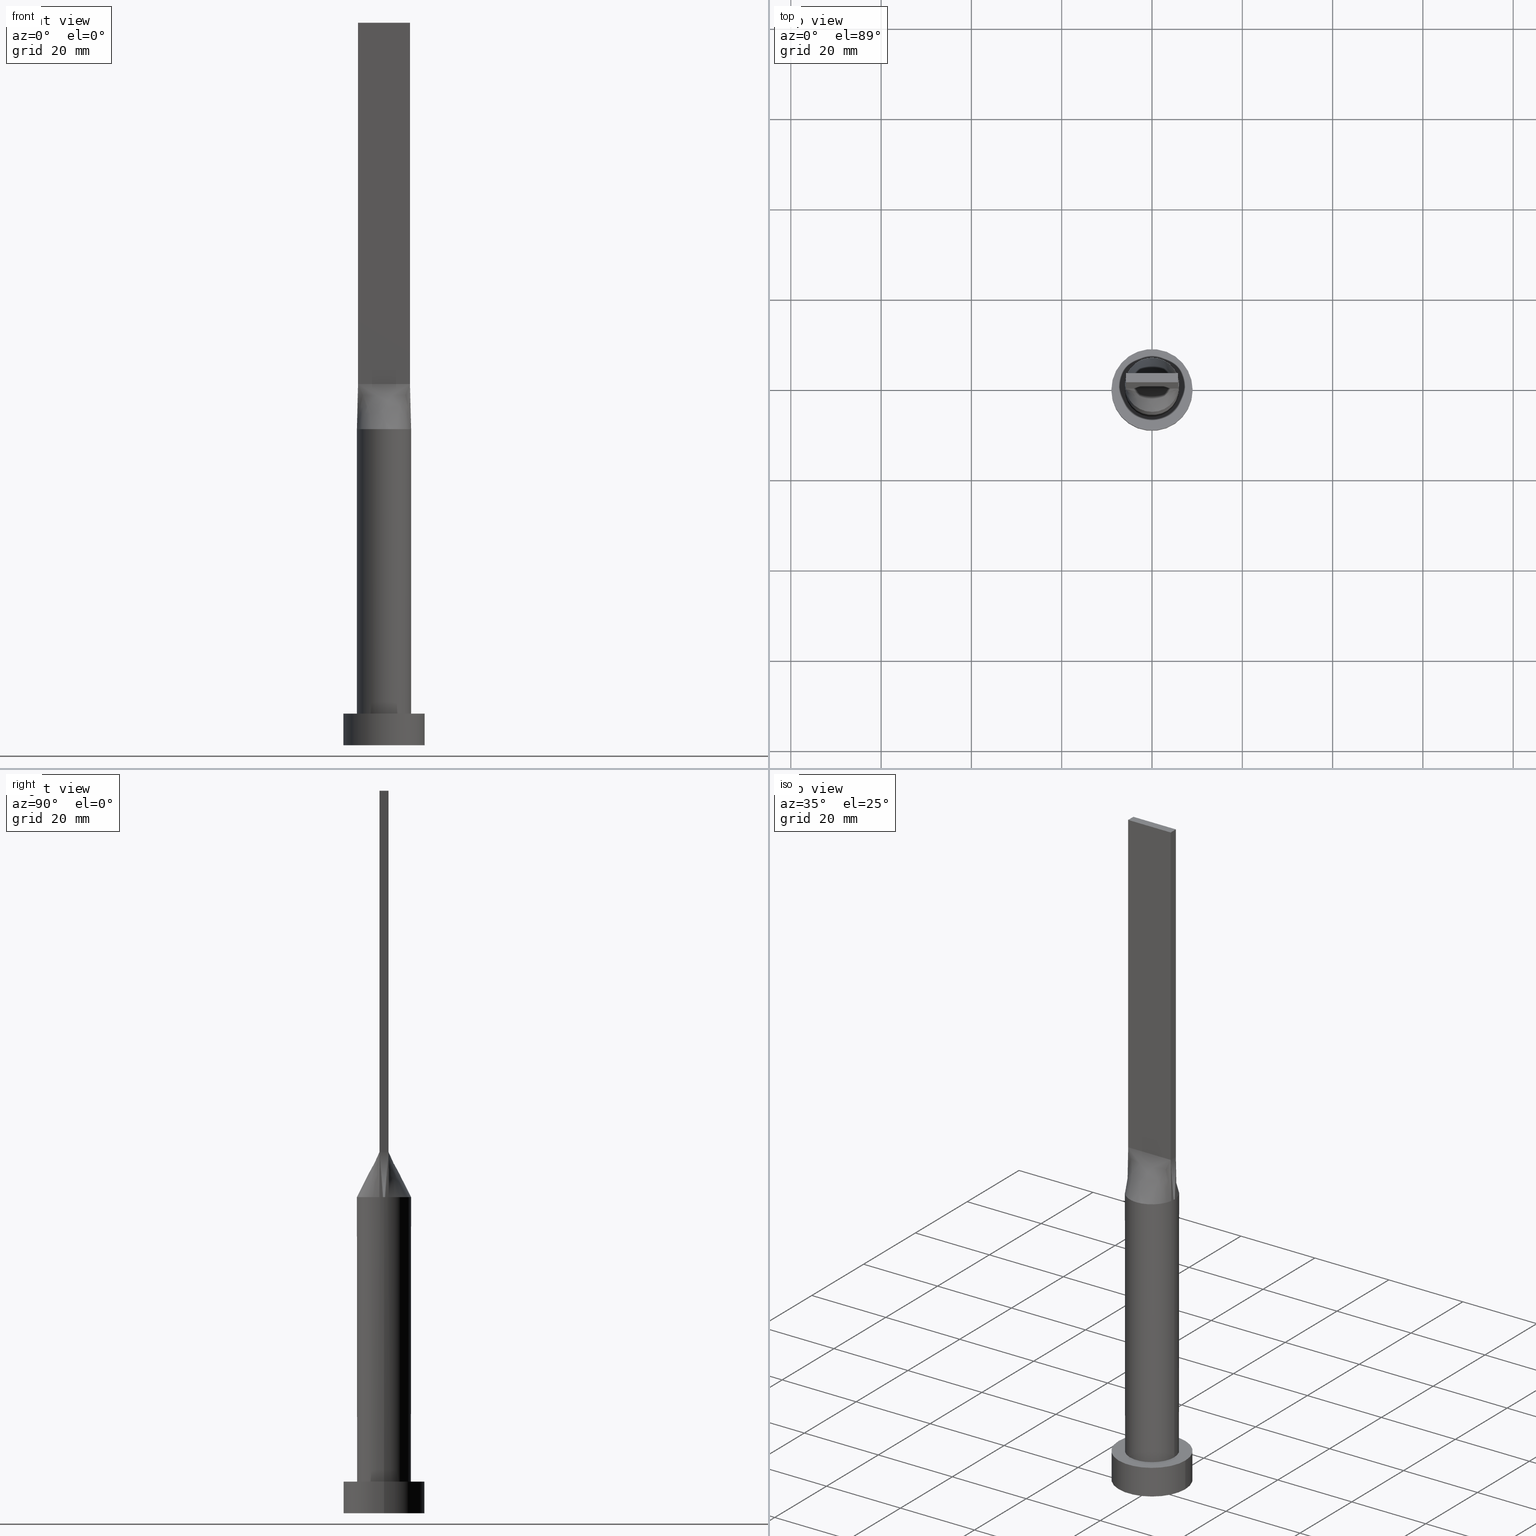
[diagram: canonical four-view strip — front | top / right | iso, engineering-drawing reading convention]
A machine part, canonical four-view strip (front | top / right | iso — engineering-drawing reading convention). The complete STEP part file that produces these views, byte-faithful:
ISO-10303-21;
HEADER;
FILE_DESCRIPTION (( 'STEP AP203' ),
    '1' );
FILE_NAME ('2aea.STEP',
    '2023-02-13T08:52:04',
    ( '' ),
    ( '' ),
    'SwSTEP 2.0',
    'SolidWorks 2019',
    '' );
FILE_SCHEMA (( 'CONFIG_CONTROL_DESIGN' ));
ENDSEC;

DATA;
#1 = CARTESIAN_POINT ( 'NONE',  ( -3.129188161608685181, 5.133661927581553819, 70.00000000000001421 ) ) ;
#2 = EDGE_CURVE ( 'NONE', #601, #67, #319, .T. ) ;
#3 = CARTESIAN_POINT ( 'NONE',  ( 4.791666666666666963, -0.9999999999999995559, 80.00000000000001421 ) ) ;
#4 = CARTESIAN_POINT ( 'NONE',  ( -5.750000000000000000, 1.000000000000000000, 80.00000000000000000 ) ) ;
#5 = CARTESIAN_POINT ( 'NONE',  ( -5.999343923413460899, -0.3452161848042010761, 70.00000000000000000 ) ) ;
#6 = COORDINATED_UNIVERSAL_TIME_OFFSET ( 1, 0, .AHEAD. ) ;
#7 = CARTESIAN_POINT ( 'NONE',  ( -5.750000000000000000, -0.9999999999999991118, 80.00000000000000000 ) ) ;
#8 = APPLICATION_PROTOCOL_DEFINITION ( 'international standard', 'config_control_design', 1994, #121 ) ;
#9 = ORIENTED_EDGE ( 'NONE', *, *, #505, .F. ) ;
#10 = PERSON ( 'NEUR�EN�', 'NEUR�EN�', 'NEUR�EN�', ('NEUR�EN�'), ('NEUR�EN�'), ('NEUR�EN�') ) ;
#11 = CALENDAR_DATE ( 2023, 13, 2 ) ;
#12 = ORIENTED_EDGE ( 'NONE', *, *, #549, .T. ) ;
#13 = AXIS2_PLACEMENT_3D ( 'NONE', #100, #343, #287 ) ;
#14 = CARTESIAN_POINT ( 'NONE',  ( 0.000000000000000000, 0.000000000000000000, 7.000000000000000000 ) ) ;
#15 = CIRCLE ( 'NONE', #161, 6.000000000000000888 ) ;
#16 = ORIENTED_EDGE ( 'NONE', *, *, #196, .T. ) ;
#17 = PLANE ( 'NONE',  #243 ) ;
#18 = APPROVAL ( #585, 'NEUR�EN�' ) ;
#19 = CARTESIAN_POINT ( 'NONE',  ( -5.750000000000000000, 1.000000000000000000, 80.00000000000000000 ) ) ;
#20 = ORIENTED_EDGE ( 'NONE', *, *, #455, .F. ) ;
#21 = CARTESIAN_POINT ( 'NONE',  ( -5.750000000000000000, 1.000000000000000000, 80.00000000000000000 ) ) ;
#22 = DIRECTION ( 'NONE',  ( 0.000000000000000000, 0.000000000000000000, 1.000000000000000000 ) ) ;
#23 = ORIENTED_EDGE ( 'NONE', *, *, #583, .F. ) ;
#24 = CARTESIAN_POINT ( 'NONE',  ( -9.000000000000000000, 0.000000000000000000, 0.000000000000000000 ) ) ;
#25 = VECTOR ( 'NONE', #178, 1000.000000000000000 ) ;
#26 = CARTESIAN_POINT ( 'NONE',  ( 5.750000000000000000, -0.9999999999999997780, 80.00000000000000000 ) ) ;
#27 = AXIS2_PLACEMENT_3D ( 'NONE', #262, #123, #449 ) ;
#28 = ORIENTED_EDGE ( 'NONE', *, *, #276, .F. ) ;
#29 = CARTESIAN_POINT ( 'NONE',  ( 5.750000000000000000, 1.000000000000000000, 80.00000000000000000 ) ) ;
#30 = FACE_OUTER_BOUND ( 'NONE', #31, .T. ) ;
#31 = EDGE_LOOP ( 'NONE', ( #299, #447, #380, #550, #171 ) ) ;
#32 = CARTESIAN_POINT ( 'NONE',  ( -5.830635264459023581, 1.014023524253742758, 75.00000000000001421 ) ) ;
#33 = CARTESIAN_POINT ( 'NONE',  ( 3.354166666666666075, -0.9999999999999993339, 80.00000000000001421 ) ) ;
#34 = ORIENTED_EDGE ( 'NONE', *, *, #505, .T. ) ;
#35 = CARTESIAN_POINT ( 'NONE',  ( -5.155904004142094266, 3.127085030567958501, 70.00000000000000000 ) ) ;
#36 = DIRECTION ( 'NONE',  ( -0.000000000000000000, -0.000000000000000000, -1.000000000000000000 ) ) ;
#37 =( GEOMETRIC_REPRESENTATION_CONTEXT ( 3 ) GLOBAL_UNCERTAINTY_ASSIGNED_CONTEXT ( ( #321 ) ) GLOBAL_UNIT_ASSIGNED_CONTEXT ( ( #155, #56, #66 ) ) REPRESENTATION_CONTEXT ( 'NONE', 'WORKASPACE' ) );
#38 = VERTEX_POINT ( 'NONE', #19 ) ;
#39 = CARTESIAN_POINT ( 'NONE',  ( 0.4205485882577719159, 6.000000000000000000, 70.00000000000000000 ) ) ;
#40 = CC_DESIGN_DATE_AND_TIME_ASSIGNMENT ( #608, #502, ( #224 ) ) ;
#41 = CARTESIAN_POINT ( 'NONE',  ( 2.635416666666665630, -0.9999999999999991118, 80.00000000000000000 ) ) ;
#42 = LINE ( 'NONE', #143, #64 ) ;
#43 = CARTESIAN_POINT ( 'NONE',  ( 1.197916666666666741, -0.9999999999999991118, 80.00000000000000000 ) ) ;
#44 = CARTESIAN_POINT ( 'NONE',  ( -2.047812955694715775, 5.654083712646525761, 70.00000000000001421 ) ) ;
#45 = CARTESIAN_POINT ( 'NONE',  ( -5.750000000000000000, -0.9999999999999988898, 160.0000000000000000 ) ) ;
#46 = EDGE_CURVE ( 'NONE', #261, #253, #15, .T. ) ;
#47 = CARTESIAN_POINT ( 'NONE',  ( 1.197916666666664076, 1.000000000000000000, 79.99999999999998579 ) ) ;
#48 = LINE ( 'NONE', #52, #281 ) ;
#49 = CARTESIAN_POINT ( 'NONE',  ( -5.270833333333333925, 1.000000000000000000, 80.00000000000000000 ) ) ;
#50 = CARTESIAN_POINT ( 'NONE',  ( -5.911270528918048051, 1.028047048507486849, 70.00000000000000000 ) ) ;
#51 = CARTESIAN_POINT ( 'NONE',  ( 3.129188161608685181, 5.133661927581551154, 69.99999999999998579 ) ) ;
#52 = CARTESIAN_POINT ( 'NONE',  ( -9.000000000000000000, 0.000000000000000000, 7.000000000000000000 ) ) ;
#53 = CARTESIAN_POINT ( 'NONE',  ( -5.750000000000000000, -0.9999999999999988898, 160.0000000000000000 ) ) ;
#54 = APPROVAL_PERSON_ORGANIZATION ( #288, #18, #341 ) ;
#55 = EDGE_CURVE ( 'NONE', #253, #261, #134, .T. ) ;
#56 =( NAMED_UNIT ( * ) PLANE_ANGLE_UNIT ( ) SI_UNIT ( $, .RADIAN. ) );
#57 = PLANE ( 'NONE',  #249 ) ;
#58 = ORIENTED_EDGE ( 'NONE', *, *, #377, .T. ) ;
#59 = CARTESIAN_POINT ( 'NONE',  ( 0.000000000000000000, 0.000000000000000000, 0.000000000000000000 ) ) ;
#60 = EDGE_CURVE ( 'NONE', #67, #507, #403, .T. ) ;
#61 = APPROVAL_DATE_TIME ( #589, #18 ) ;
#62 = EDGE_LOOP ( 'NONE', ( #411, #560 ) ) ;
#63 = DIRECTION ( 'NONE',  ( 0.000000000000000000, 0.000000000000000000, 1.000000000000000000 ) ) ;
#64 = VECTOR ( 'NONE', #429, 1000.000000000000114 ) ;
#65 = FACE_BOUND ( 'NONE', #62, .T. ) ;
#66 =( NAMED_UNIT ( * ) SI_UNIT ( $, .STERADIAN. ) SOLID_ANGLE_UNIT ( ) );
#67 = VERTEX_POINT ( 'NONE', #26 ) ;
#68 = CARTESIAN_POINT ( 'NONE',  ( 4.788055724916948641, 3.685825800347680925, 70.00000000000000000 ) ) ;
#69 = CARTESIAN_POINT ( 'NONE',  ( -5.750000000000000000, 1.000000000000000000, 160.0000000000000000 ) ) ;
#70 = VERTEX_POINT ( 'NONE', #501 ) ;
#71 = CARTESIAN_POINT ( 'NONE',  ( -5.911281259919041631, 1.028048927730119244, 70.00000000000000000 ) ) ;
#72 = ADVANCED_FACE ( 'NONE', ( #305 ), #158, .F. ) ;
#73 = CARTESIAN_POINT ( 'NONE',  ( -5.750000000000000000, -0.9999999999999988898, 160.0000000000000000 ) ) ;
#74 = VERTEX_POINT ( 'NONE', #349 ) ;
#75 = CARTESIAN_POINT ( 'NONE',  ( -5.826866859193279069, 1.513368149424918263, 70.00000000000001421 ) ) ;
#76 = CARTESIAN_POINT ( 'NONE',  ( 0.000000000000000000, 0.000000000000000000, 7.000000000000000000 ) ) ;
#77 = ORIENTED_EDGE ( 'NONE', *, *, #557, .F. ) ;
#78 = DIRECTION ( 'NONE',  ( 0.01612489271847474676, -0.002804329168430286148, 0.9998660528154422744 ) ) ;
#79 = CLOSED_SHELL ( 'NONE', ( #472, #173, #309, #150, #514, #338, #255, #147, #297, #577, #163, #72, #602, #489, #387 ) ) ;
#80 = CARTESIAN_POINT ( 'NONE',  ( 0.4791666666666670182, -0.9999999999999991118, 79.99999999999998579 ) ) ;
#81 = EDGE_LOOP ( 'NONE', ( #590, #493, #511, #28, #20 ) ) ;
#82 = CARTESIAN_POINT ( 'NONE',  ( 5.750000000000000000, -0.9999999999999997780, 160.0000000000000000 ) ) ;
#83 = CARTESIAN_POINT ( 'NONE',  ( -1.677083333333331705, -0.9999999999999991118, 79.99999999999998579 ) ) ;
#84 = VERTEX_POINT ( 'NONE', #73 ) ;
#85 = EDGE_CURVE ( 'NONE', #74, #303, #264, .T. ) ;
#86 = CARTESIAN_POINT ( 'NONE',  ( -2.047812955694715775, 5.654083712646525761, 70.00000000000001421 ) ) ;
#87 = CARTESIAN_POINT ( 'NONE',  ( -5.911270528918048051, -1.028047048507485295, 70.00000000000000000 ) ) ;
#88 = APPROVAL_PERSON_ORGANIZATION ( #149, #323, #291 ) ;
#89 = CARTESIAN_POINT ( 'NONE',  ( -4.791666666666667851, 1.000000000000000000, 80.00000000000000000 ) ) ;
#90 = CARTESIAN_POINT ( 'NONE',  ( 1.677083333333333037, -0.9999999999999991118, 80.00000000000000000 ) ) ;
#91 = CARTESIAN_POINT ( 'NONE',  ( 5.750000000000000000, 1.000000000000000000, 80.00000000000000000 ) ) ;
#92 = EDGE_CURVE ( 'NONE', #518, #38, #314, .T. ) ;
#93 = LINE ( 'NONE', #131, #193 ) ;
#94 = CARTESIAN_POINT ( 'NONE',  ( -2.635416666666670071, 1.000000000000000000, 80.00000000000001421 ) ) ;
#95 = CYLINDRICAL_SURFACE ( 'NONE', #273, 9.000000000000000000 ) ;
#96 = VECTOR ( 'NONE', #78, 1000.000000000000114 ) ;
#97 = CARTESIAN_POINT ( 'NONE',  ( 4.788055724916948641, 3.685825800347680925, 70.00000000000000000 ) ) ;
#98 = CARTESIAN_POINT ( 'NONE',  ( 0.000000000000000000, 0.000000000000000000, 70.00000000000000000 ) ) ;
#99 = CARTESIAN_POINT ( 'NONE',  ( 0.9583333333333304838, 1.000000000000000000, 79.99999999999998579 ) ) ;
#100 = CARTESIAN_POINT ( 'NONE',  ( 0.000000000000000000, 0.000000000000000000, 70.00000000000000000 ) ) ;
#101 = APPLICATION_PROTOCOL_DEFINITION ( 'international standard', 'config_control_design', 1994, #217 ) ;
#102 = VECTOR ( 'NONE', #198, 1000.000000000000000 ) ;
#103 = APPROVAL_STATUS ( 'not_yet_approved' ) ;
#104 = EDGE_CURVE ( 'NONE', #218, #594, #364, .T. ) ;
#105 = DATE_AND_TIME ( #490, #536 ) ;
#106 = ORIENTED_EDGE ( 'NONE', *, *, #394, .T. ) ;
#107 = DIRECTION ( 'NONE',  ( 0.000000000000000000, 1.000000000000000000, 0.000000000000000000 ) ) ;
#108 = DIRECTION ( 'NONE',  ( 1.000000000000000000, 0.000000000000000000, 0.000000000000000000 ) ) ;
#109 = ORIENTED_EDGE ( 'NONE', *, *, #592, .T. ) ;
#110 = MANIFOLD_SOLID_BREP ( 'P�idat vysunut�m5', #79 ) ;
#111 = CARTESIAN_POINT ( 'NONE',  ( 5.155904004142093378, 3.127085030567957169, 70.00000000000001421 ) ) ;
#112 = AXIS2_PLACEMENT_3D ( 'NONE', #481, #237, #500 ) ;
#113 = DIRECTION ( 'NONE',  ( 0.000000000000000000, 0.000000000000000000, 1.000000000000000000 ) ) ;
#114 = ORIENTED_EDGE ( 'NONE', *, *, #85, .F. ) ;
#115 = CARTESIAN_POINT ( 'NONE',  ( -1.654707822076785906, 5.782296865845955480, 70.00000000000001421 ) ) ;
#116 = DIRECTION ( 'NONE',  ( 0.000000000000000000, -1.000000000000000000, 0.000000000000000000 ) ) ;
#117 = ORIENTED_EDGE ( 'NONE', *, *, #532, .F. ) ;
#118 = DIRECTION ( 'NONE',  ( -0.000000000000000000, -0.000000000000000000, -1.000000000000000000 ) ) ;
#119 = CARTESIAN_POINT ( 'NONE',  ( -5.999671961706731338, 1.720595681592925272E-14, 70.00000000000000000 ) ) ;
#120 = ORIENTED_EDGE ( 'NONE', *, *, #128, .F. ) ;
#121 = APPLICATION_CONTEXT ( 'configuration controlled 3d designs of mechanical parts and assemblies' ) ;
#122 = CIRCLE ( 'NONE', #383, 9.000000000000000000 ) ;
#123 = DIRECTION ( 'NONE',  ( 1.000000000000000000, 0.000000000000000000, -0.000000000000000000 ) ) ;
#124 = SHAPE_DEFINITION_REPRESENTATION ( #479, #410 ) ;
#125 = ORIENTED_EDGE ( 'NONE', *, *, #55, .T. ) ;
#126 = CARTESIAN_POINT ( 'NONE',  ( 2.047812955694715331, 5.654083712646525761, 70.00000000000000000 ) ) ;
#127 = DIRECTION ( 'NONE',  ( 1.000000000000000000, 0.000000000000000000, 0.000000000000000000 ) ) ;
#128 = EDGE_CURVE ( 'NONE', #303, #74, #235, .T. ) ;
#129 = CALENDAR_DATE ( 2023, 13, 2 ) ;
#130 = ORIENTED_EDGE ( 'NONE', *, *, #2, .F. ) ;
#131 = CARTESIAN_POINT ( 'NONE',  ( 5.750000000000000000, 1.000000000000000000, 160.0000000000000000 ) ) ;
#132 = CARTESIAN_POINT ( 'NONE',  ( 5.830635264459022693, -1.014023524253744313, 75.00000000000001421 ) ) ;
#133 = CARTESIAN_POINT ( 'NONE',  ( -3.833333333333331705, -0.9999999999999991118, 79.99999999999998579 ) ) ;
#134 = CIRCLE ( 'NONE', #487, 6.000000000000000888 ) ;
#135 = CARTESIAN_POINT ( 'NONE',  ( 1.677083333333330817, 1.000000000000000000, 79.99999999999998579 ) ) ;
#136 = EDGE_CURVE ( 'NONE', #340, #491, #151, .T. ) ;
#137 = CARTESIAN_POINT ( 'NONE',  ( -6.000000000000000888, 0.000000000000000000, 7.000000000000000000 ) ) ;
#138 = CARTESIAN_POINT ( 'NONE',  ( -0.2395833333333365622, 1.000000000000000000, 79.99999999999998579 ) ) ;
#139 = CARTESIAN_POINT ( 'NONE',  ( -2.395833333333331261, -0.9999999999999991118, 79.99999999999998579 ) ) ;
#140 = CARTESIAN_POINT ( 'NONE',  ( -3.833333333333336146, 1.000000000000000000, 80.00000000000001421 ) ) ;
#141 = CARTESIAN_POINT ( 'NONE',  ( 0.000000000000000000, 0.000000000000000000, 7.000000000000000000 ) ) ;
#142 = VECTOR ( 'NONE', #382, 1000.000000000000000 ) ;
#143 = CARTESIAN_POINT ( 'NONE',  ( 5.830635264459024469, 1.014023524253741648, 75.00000000000001421 ) ) ;
#144 = B_SPLINE_SURFACE_WITH_KNOTS ( 'NONE', 3, 1, ( 
 ( #87, #526 ),
 ( #277, #328 ),
 ( #233, #431 ),
 ( #427, #133 ),
 ( #517, #184 ),
 ( #423, #221 ),
 ( #614, #139 ),
 ( #562, #179 ),
 ( #175, #83 ),
 ( #365, #374 ),
 ( #326, #462 ),
 ( #181, #524 ),
 ( #573, #607 ),
 ( #467, #612 ),
 ( #368, #80 ),
 ( #621, #566 ),
 ( #186, #43 ),
 ( #473, #90 ),
 ( #274, #231 ),
 ( #425, #575 ),
 ( #378, #41 ),
 ( #267, #33 ),
 ( #228, #371 ),
 ( #568, #3 ),
 ( #434, #334 ),
 ( #146, #301 ) ),
 .UNSPECIFIED., .F., .F., .F.,
 ( 4, 2, 2, 2, 2, 2, 2, 2, 2, 2, 2, 2, 4 ),
 ( 2, 2 ),
 ( 0.000000000000000000, 0.1250000000000001388, 0.2500000000000002776, 0.3125000000000002220, 0.3750000000000001665, 0.4375000000000001665, 0.5000000000000001110, 0.5625000000000001110, 0.6250000000000000000, 0.6875000000000000000, 0.7499999999999998890, 0.8750000000000000000, 1.000000000000000000 ),
 ( 0.000000000000000000, 1.000000000000000000 ),
 .UNSPECIFIED. ) ;
#145 = AXIS2_PLACEMENT_3D ( 'NONE', #506, #593, #395 ) ;
#146 = CARTESIAN_POINT ( 'NONE',  ( 5.911270528918047162, -1.028047048507488848, 70.00000000000000000 ) ) ;
#147 = ADVANCED_FACE ( 'NONE', ( #30 ), #523, .T. ) ;
#148 = CARTESIAN_POINT ( 'NONE',  ( 0.000000000000000000, 0.000000000000000000, 0.000000000000000000 ) ) ;
#149 = PERSON_AND_ORGANIZATION ( #10, #234 ) ;
#150 = ADVANCED_FACE ( 'NONE', ( #65, #414 ), #302, .T. ) ;
#151 = CIRCLE ( 'NONE', #313, 9.000000000000000000 ) ;
#152 = ORIENTED_EDGE ( 'NONE', *, *, #283, .T. ) ;
#153 = CARTESIAN_POINT ( 'NONE',  ( 6.000000000000000888, 7.347880794884120722E-16, 7.000000000000000000 ) ) ;
#154 = FACE_OUTER_BOUND ( 'NONE', #598, .T. ) ;
#155 =( LENGTH_UNIT ( ) NAMED_UNIT ( * ) SI_UNIT ( .MILLI., .METRE. ) );
#156 = ORIENTED_EDGE ( 'NONE', *, *, #330, .F. ) ;
#157 = CARTESIAN_POINT ( 'NONE',  ( 5.674157483178163375, 2.041064365575945061, 70.00000000000000000 ) ) ;
#158 = PLANE ( 'NONE',  #27 ) ;
#159 = ORIENTED_EDGE ( 'NONE', *, *, #616, .T. ) ;
#160 = LINE ( 'NONE', #352, #289 ) ;
#161 = AXIS2_PLACEMENT_3D ( 'NONE', #14, #22, #547 ) ;
#162 = CARTESIAN_POINT ( 'NONE',  ( 5.750000000000000000, -0.3333333333333330928, 79.99999999999998579 ) ) ;
#163 = ADVANCED_FACE ( 'NONE', ( #252 ), #400, .F. ) ;
#164 = DATE_AND_TIME ( #257, #580 ) ;
#165 = ORIENTED_EDGE ( 'NONE', *, *, #428, .T. ) ;
#166 = FACE_OUTER_BOUND ( 'NONE', #407, .T. ) ;
#167 = DIRECTION ( 'NONE',  ( 0.000000000000000000, 0.000000000000000000, 1.000000000000000000 ) ) ;
#168 = VERTEX_POINT ( 'NONE', #119 ) ;
#169 = CARTESIAN_POINT ( 'NONE',  ( 5.911281968884419591, -1.028049053400068802, 70.00000000000000000 ) ) ;
#170 = CARTESIAN_POINT ( 'NONE',  ( -5.750000000000000000, -0.9999999999999988898, 80.00000000000000000 ) ) ;
#171 = ORIENTED_EDGE ( 'NONE', *, *, #592, .F. ) ;
#172 = DIRECTION ( 'NONE',  ( 1.000000000000000000, 0.000000000000000000, -0.000000000000000000 ) ) ;
#173 = ADVANCED_FACE ( 'NONE', ( #154 ), #509, .T. ) ;
#174 = LOCAL_TIME ( 9, 52, 4.000000000000000000, #293 ) ;
#175 = CARTESIAN_POINT ( 'NONE',  ( -2.785082292717044439, -5.329682650394844678, 70.00000000000001421 ) ) ;
#176 = APPROVAL_ROLE ( '' ) ;
#177 = EDGE_LOOP ( 'NONE', ( #106, #555, #23, #77 ) ) ;
#178 = DIRECTION ( 'NONE',  ( -0.000000000000000000, -0.000000000000000000, -1.000000000000000000 ) ) ;
#179 = CARTESIAN_POINT ( 'NONE',  ( -1.916666666666664964, -0.9999999999999991118, 79.99999999999998579 ) ) ;
#180 = CARTESIAN_POINT ( 'NONE',  ( 0.4791666666666635765, 1.000000000000000000, 79.99999999999998579 ) ) ;
#181 = CARTESIAN_POINT ( 'NONE',  ( -0.8409966403356993192, -5.955311887060000586, 70.00000000000000000 ) ) ;
#182 = EDGE_CURVE ( 'NONE', #84, #601, #322, .T. ) ;
#183 = CARTESIAN_POINT ( 'NONE',  ( 2.635416666666664298, 1.000000000000000000, 79.99999999999998579 ) ) ;
#184 = CARTESIAN_POINT ( 'NONE',  ( -3.354166666666664742, -0.9999999999999991118, 79.99999999999998579 ) ) ;
#185 = CARTESIAN_POINT ( 'NONE',  ( 5.826866859193277293, 1.513368149424917153, 70.00000000000001421 ) ) ;
#186 = CARTESIAN_POINT ( 'NONE',  ( 2.047812955694711778, -5.654083712646525761, 70.00000000000000000 ) ) ;
#187 = CARTESIAN_POINT ( 'NONE',  ( -1.916666666666669849, 1.000000000000000000, 80.00000000000000000 ) ) ;
#188 = CARTESIAN_POINT ( 'NONE',  ( -5.750000000000000000, -0.3333333333333327042, 79.99999999999998579 ) ) ;
#189 = B_SPLINE_SURFACE_WITH_KNOTS ( 'NONE', 3, 1, ( 
 ( #426, #91 ),
 ( #185, #329 ),
 ( #238, #567 ),
 ( #474, #433 ),
 ( #97, #529 ),
 ( #533, #183 ),
 ( #376, #236 ),
 ( #51, #574 ),
 ( #617, #135 ),
 ( #579, #47 ),
 ( #576, #99 ),
 ( #372, #180 ),
 ( #571, #327 ),
 ( #229, #138 ),
 ( #525, #480 ),
 ( #278, #521 ),
 ( #44, #471 ),
 ( #527, #280 ),
 ( #1, #187 ),
 ( #476, #232 ),
 ( #241, #94 ),
 ( #286, #379 ),
 ( #613, #140 ),
 ( #332, #89 ),
 ( #275, #49 ),
 ( #284, #190 ) ),
 .UNSPECIFIED., .F., .F., .F.,
 ( 4, 2, 2, 2, 2, 2, 2, 2, 2, 2, 2, 2, 4 ),
 ( 2, 2 ),
 ( 0.000000000000000000, 0.1250000000000000000, 0.2500000000000000000, 0.3125000000000000000, 0.3750000000000000000, 0.4375000000000000000, 0.5000000000000000000, 0.5625000000000000000, 0.6250000000000000000, 0.6875000000000000000, 0.7500000000000000000, 0.8750000000000000000, 1.000000000000000000 ),
 ( 0.000000000000000000, 1.000000000000000000 ),
 .UNSPECIFIED. ) ;
#190 = CARTESIAN_POINT ( 'NONE',  ( -5.750000000000000000, 1.000000000000000000, 80.00000000000000000 ) ) ;
#191 = EDGE_CURVE ( 'NONE', #586, #507, #93, .T. ) ;
#192 = CARTESIAN_POINT ( 'NONE',  ( -5.969986125248324171, -0.6904323696084029294, 70.00000000000000000 ) ) ;
#193 = VECTOR ( 'NONE', #36, 1000.000000000000000 ) ;
#194 = LINE ( 'NONE', #388, #102 ) ;
#195 = CARTESIAN_POINT ( 'NONE',  ( 0.000000000000000000, 0.000000000000000000, 70.00000000000000000 ) ) ;
#196 = EDGE_CURVE ( 'NONE', #491, #340, #122, .T. ) ;
#197 = ORIENTED_EDGE ( 'NONE', *, *, #92, .T. ) ;
#198 = DIRECTION ( 'NONE',  ( -0.000000000000000000, -0.000000000000000000, -1.000000000000000000 ) ) ;
#199 = VECTOR ( 'NONE', #384, 1000.000000000000000 ) ;
#200 = ORIENTED_EDGE ( 'NONE', *, *, #128, .T. ) ;
#201 = DIRECTION ( 'NONE',  ( 1.000000000000000000, 0.000000000000000000, 0.000000000000000000 ) ) ;
#202 = PERSON_AND_ORGANIZATION ( #10, #234 ) ;
#203 = ORIENTED_EDGE ( 'NONE', *, *, #422, .T. ) ;
#204 = CARTESIAN_POINT ( 'NONE',  ( -5.750000000000000000, 0.3333333333333336479, 79.99999999999998579 ) ) ;
#205 = DIRECTION ( 'NONE',  ( 1.000000000000000000, 0.000000000000000000, -0.000000000000000000 ) ) ;
#206 = ORIENTED_EDGE ( 'NONE', *, *, #219, .T. ) ;
#207 = CARTESIAN_POINT ( 'NONE',  ( 3.755743307515265084, 4.694751915224760097, 69.99999999999998579 ) ) ;
#208 = PRODUCT_RELATED_PRODUCT_CATEGORY ( 'detail', '', ( #230 ) ) ;
#209 = CARTESIAN_POINT ( 'NONE',  ( 5.750000000000000000, -1.000000000000000000, 80.00000000000000000 ) ) ;
#210 = ORIENTED_EDGE ( 'NONE', *, *, #136, .F. ) ;
#211 = DIRECTION ( 'NONE',  ( -1.000000000000000000, 0.000000000000000000, 0.000000000000000000 ) ) ;
#212 = VECTOR ( 'NONE', #118, 1000.000000000000000 ) ;
#213 = CARTESIAN_POINT ( 'NONE',  ( 5.969986125248322395, -0.6904323696084077033, 70.00000000000000000 ) ) ;
#214 = EDGE_LOOP ( 'NONE', ( #292, #503, #393, #159 ) ) ;
#215 = DIRECTION ( 'NONE',  ( 0.000000000000000000, 0.000000000000000000, 1.000000000000000000 ) ) ;
#216 = CARTESIAN_POINT ( 'NONE',  ( 0.000000000000000000, 0.000000000000000000, 7.000000000000000000 ) ) ;
#217 = APPLICATION_CONTEXT ( 'configuration controlled 3d designs of mechanical parts and assemblies' ) ;
#218 = VERTEX_POINT ( 'NONE', #279 ) ;
#219 = EDGE_CURVE ( 'NONE', #586, #518, #475, .T. ) ;
#220 = CARTESIAN_POINT ( 'NONE',  ( -5.830635264459023581, -1.014023524253742092, 75.00000000000001421 ) ) ;
#221 = CARTESIAN_POINT ( 'NONE',  ( -2.635416666666664298, -0.9999999999999991118, 79.99999999999998579 ) ) ;
#222 = EDGE_LOOP ( 'NONE', ( #457, #605, #156, #401, #165, #125 ) ) ;
#223 = DIRECTION ( 'NONE',  ( 1.000000000000000000, 0.000000000000000000, 0.000000000000000000 ) ) ;
#224 = SECURITY_CLASSIFICATION ( '', '', #543 ) ;
#225 = DIRECTION ( 'NONE',  ( -1.000000000000000000, 0.000000000000000000, 0.000000000000000000 ) ) ;
#226 = AXIS2_PLACEMENT_3D ( 'NONE', #360, #116, #554 ) ;
#227 = DIRECTION ( 'NONE',  ( -1.000000000000000000, 0.000000000000000000, 0.000000000000000000 ) ) ;
#228 = CARTESIAN_POINT ( 'NONE',  ( 5.155904004142090713, -3.127085030567962498, 70.00000000000000000 ) ) ;
#229 = CARTESIAN_POINT ( 'NONE',  ( -0.4205485882577720824, 6.000000000000000888, 69.99999999999998579 ) ) ;
#230 = PRODUCT ( '2aea', '2aea', '', ( #538 ) ) ;
#231 = CARTESIAN_POINT ( 'NONE',  ( 1.916666666666666297, -0.9999999999999991118, 80.00000000000000000 ) ) ;
#232 = CARTESIAN_POINT ( 'NONE',  ( -2.395833333333336590, 1.000000000000000000, 80.00000000000001421 ) ) ;
#233 = CARTESIAN_POINT ( 'NONE',  ( -5.674157483178165151, -2.041064365575944173, 70.00000000000000000 ) ) ;
#234 = ORGANIZATION ( 'NEUR�EN�', 'NEUR�EN�', '' ) ;
#235 = CIRCLE ( 'NONE', #375, 9.000000000000000000 ) ;
#236 = CARTESIAN_POINT ( 'NONE',  ( 2.395833333333330817, 1.000000000000000000, 79.99999999999998579 ) ) ;
#237 = DIRECTION ( 'NONE',  ( 0.000000000000000000, 0.000000000000000000, 1.000000000000000000 ) ) ;
#238 = CARTESIAN_POINT ( 'NONE',  ( 5.674157483178163375, 2.041064365575945061, 70.00000000000000000 ) ) ;
#239 = CC_DESIGN_PERSON_AND_ORGANIZATION_ASSIGNMENT ( #443, #539, ( #344 ) ) ;
#240 = LINE ( 'NONE', #21, #199 ) ;
#241 = CARTESIAN_POINT ( 'NONE',  ( -4.038230363771780240, 4.452009983475584853, 69.99999999999998579 ) ) ;
#242 = CARTESIAN_POINT ( 'NONE',  ( -5.911270528918048051, -1.028047048507485295, 70.00000000000000000 ) ) ;
#243 = AXIS2_PLACEMENT_3D ( 'NONE', #494, #63, #250 ) ;
#244 = DIRECTION ( 'NONE',  ( -1.000000000000000000, 7.542275982507857147E-17, 0.000000000000000000 ) ) ;
#245 = ORIENTED_EDGE ( 'NONE', *, *, #46, .T. ) ;
#246 = CARTESIAN_POINT ( 'NONE',  ( 5.999343923413460011, -0.3452161848042055725, 70.00000000000000000 ) ) ;
#247 = PERSON_AND_ORGANIZATION ( #10, #234 ) ;
#248 = ORIENTED_EDGE ( 'NONE', *, *, #616, .F. ) ;
#249 = AXIS2_PLACEMENT_3D ( 'NONE', #53, #497, #244 ) ;
#250 = DIRECTION ( 'NONE',  ( 1.000000000000000000, 0.000000000000000000, -0.000000000000000000 ) ) ;
#251 = VECTOR ( 'NONE', #456, 1000.000000000000000 ) ;
#252 = FACE_OUTER_BOUND ( 'NONE', #418, .T. ) ;
#253 = VERTEX_POINT ( 'NONE', #137 ) ;
#254 = CARTESIAN_POINT ( 'NONE',  ( 4.038230363771782905, 4.452009983475585742, 70.00000000000000000 ) ) ;
#255 = ADVANCED_FACE ( 'NONE', ( #270 ), #144, .T. ) ;
#256 = DIRECTION ( 'NONE',  ( 0.000000000000000000, 0.000000000000000000, 1.000000000000000000 ) ) ;
#257 = CALENDAR_DATE ( 2023, 13, 2 ) ;
#258 = ORIENTED_EDGE ( 'NONE', *, *, #283, .F. ) ;
#259 = FACE_OUTER_BOUND ( 'NONE', #214, .T. ) ;
#260 = CARTESIAN_POINT ( 'NONE',  ( 5.911270528918047162, -1.028047048507490180, 70.00000000000000000 ) ) ;
#261 = VERTEX_POINT ( 'NONE', #153 ) ;
#262 = CARTESIAN_POINT ( 'NONE',  ( -5.750000000000000000, 1.000000000000000000, 160.0000000000000000 ) ) ;
#263 = EDGE_CURVE ( 'NONE', #397, #218, #477, .T. ) ;
#264 = CIRCLE ( 'NONE', #537, 9.000000000000000000 ) ;
#265 = ORIENTED_EDGE ( 'NONE', *, *, #136, .T. ) ;
#266 = LINE ( 'NONE', #220, #391 ) ;
#267 = CARTESIAN_POINT ( 'NONE',  ( 4.788055724916943312, -3.685825800347684922, 69.99999999999998579 ) ) ;
#268 = ORIENTED_EDGE ( 'NONE', *, *, #276, .T. ) ;
#269 = CARTESIAN_POINT ( 'NONE',  ( 0.8409966403356972098, 5.955311887059998810, 70.00000000000001421 ) ) ;
#270 = FACE_OUTER_BOUND ( 'NONE', #544, .T. ) ;
#271 = ORIENTED_EDGE ( 'NONE', *, *, #182, .F. ) ;
#272 = CARTESIAN_POINT ( 'NONE',  ( 5.750000000000000000, -0.9999999999999997780, 160.0000000000000000 ) ) ;
#273 = AXIS2_PLACEMENT_3D ( 'NONE', #141, #534, #348 ) ;
#274 = CARTESIAN_POINT ( 'NONE',  ( 3.129188161608682073, -5.133661927581553819, 70.00000000000000000 ) ) ;
#275 = CARTESIAN_POINT ( 'NONE',  ( -5.826866859193279069, 1.513368149424918263, 70.00000000000001421 ) ) ;
#276 = EDGE_CURVE ( 'NONE', #38, #601, #240, .T. ) ;
#277 = CARTESIAN_POINT ( 'NONE',  ( -5.826866859193279957, -1.513368149424916931, 70.00000000000001421 ) ) ;
#278 = CARTESIAN_POINT ( 'NONE',  ( -1.654707822076785906, 5.782296865845955480, 70.00000000000001421 ) ) ;
#279 = CARTESIAN_POINT ( 'NONE',  ( 5.999671961706731338, 1.511234776062676333E-15, 70.00000000000000000 ) ) ;
#280 = CARTESIAN_POINT ( 'NONE',  ( -1.677083333333336368, 1.000000000000000000, 79.99999999999998579 ) ) ;
#281 = VECTOR ( 'NONE', #448, 1000.000000000000000 ) ;
#282 = FACE_OUTER_BOUND ( 'NONE', #453, .T. ) ;
#283 = EDGE_CURVE ( 'NONE', #74, #491, #48, .T. ) ;
#284 = CARTESIAN_POINT ( 'NONE',  ( -5.911270528918048051, 1.028047048507485517, 70.00000000000000000 ) ) ;
#285 = FACE_OUTER_BOUND ( 'NONE', #81, .T. ) ;
#286 = CARTESIAN_POINT ( 'NONE',  ( -4.788055724916949529, 3.685825800347683590, 70.00000000000000000 ) ) ;
#287 = DIRECTION ( 'NONE',  ( -1.000000000000000000, 0.000000000000000000, 0.000000000000000000 ) ) ;
#288 = PERSON_AND_ORGANIZATION ( #10, #234 ) ;
#289 = VECTOR ( 'NONE', #599, 1000.000000000000000 ) ;
#290 = FACE_OUTER_BOUND ( 'NONE', #540, .T. ) ;
#291 = APPROVAL_ROLE ( '' ) ;
#292 = ORIENTED_EDGE ( 'NONE', *, *, #60, .T. ) ;
#293 = COORDINATED_UNIVERSAL_TIME_OFFSET ( 1, 0, .AHEAD. ) ;
#294 = ORIENTED_EDGE ( 'NONE', *, *, #92, .F. ) ;
#295 = DIRECTION ( 'NONE',  ( 1.000000000000000000, 0.000000000000000000, 0.000000000000000000 ) ) ;
#296 = CARTESIAN_POINT ( 'NONE',  ( 0.000000000000000000, 0.000000000000000000, 7.000000000000000000 ) ) ;
#297 = ADVANCED_FACE ( 'NONE', ( #285 ), #615, .T. ) ;
#298 = CIRCLE ( 'NONE', #363, 6.000000000000000888 ) ;
#299 = ORIENTED_EDGE ( 'NONE', *, *, #263, .T. ) ;
#300 = CC_DESIGN_SECURITY_CLASSIFICATION ( #224, ( #510 ) ) ;
#301 = CARTESIAN_POINT ( 'NONE',  ( 5.750000000000000000, -0.9999999999999997780, 80.00000000000000000 ) ) ;
#302 = PLANE ( 'NONE',  #499 ) ;
#303 = VERTEX_POINT ( 'NONE', #402 ) ;
#304 = CARTESIAN_POINT ( 'NONE',  ( -4.038230363771780240, 4.452009983475584853, 69.99999999999998579 ) ) ;
#305 = FACE_OUTER_BOUND ( 'NONE', #350, .T. ) ;
#306 = COORDINATED_UNIVERSAL_TIME_OFFSET ( 1, 0, .AHEAD. ) ;
#307 = ORIENTED_EDGE ( 'NONE', *, *, #191, .T. ) ;
#308 = CARTESIAN_POINT ( 'NONE',  ( -3.755743307515264195, 4.694751915224762762, 69.99999999999998579 ) ) ;
#309 = ADVANCED_FACE ( 'NONE', ( #545 ), #95, .T. ) ;
#310 = DIRECTION ( 'NONE',  ( -0.000000000000000000, 1.000000000000000000, -0.000000000000000000 ) ) ;
#311 = ORIENTED_EDGE ( 'NONE', *, *, #2, .T. ) ;
#312 = PLANE ( 'NONE',  #335 ) ;
#313 = AXIS2_PLACEMENT_3D ( 'NONE', #59, #597, #459 ) ;
#314 = LINE ( 'NONE', #69, #251 ) ;
#315 = ORIENTED_EDGE ( 'NONE', *, *, #532, .T. ) ;
#316 = CARTESIAN_POINT ( 'NONE',  ( -6.000000000000000888, 0.000000000000000000, 70.00000000000000000 ) ) ;
#317 = DIRECTION ( 'NONE',  ( 0.000000000000000000, 0.000000000000000000, 1.000000000000000000 ) ) ;
#318 = APPROVAL_DATE_TIME ( #164, #438 ) ;
#319 = LINE ( 'NONE', #170, #432 ) ;
#320 = CARTESIAN_POINT ( 'NONE',  ( 1.654707822076785684, 5.782296865845954592, 70.00000000000002842 ) ) ;
#321 = UNCERTAINTY_MEASURE_WITH_UNIT (LENGTH_MEASURE( 1.000000000000000082E-05 ), #155, 'distance_accuracy_value', 'NONE');
#322 = LINE ( 'NONE', #45, #390 ) ;
#323 = APPROVAL ( #103, 'NEUR�EN�' ) ;
#324 = DIRECTION ( 'NONE',  ( -0.01612489271847465655, 0.002804329168430633092, 0.9998660528154422744 ) ) ;
#325 = AXIS2_PLACEMENT_3D ( 'NONE', #82, #211, #412 ) ;
#326 = CARTESIAN_POINT ( 'NONE',  ( -1.654707822076787016, -5.782296865845954592, 70.00000000000000000 ) ) ;
#327 = CARTESIAN_POINT ( 'NONE',  ( 0.2395833333333300952, 1.000000000000000000, 79.99999999999998579 ) ) ;
#328 = CARTESIAN_POINT ( 'NONE',  ( -5.270833333333333037, -0.9999999999999988898, 80.00000000000000000 ) ) ;
#329 = CARTESIAN_POINT ( 'NONE',  ( 5.270833333333333037, 1.000000000000000000, 79.99999999999998579 ) ) ;
#330 = EDGE_CURVE ( 'NONE', #347, #397, #333, .T. ) ;
#331 = CARTESIAN_POINT ( 'NONE',  ( 3.129188161608685181, 5.133661927581551154, 69.99999999999998579 ) ) ;
#332 = CARTESIAN_POINT ( 'NONE',  ( -5.674157483178163375, 2.041064365575947726, 70.00000000000000000 ) ) ;
#333 = CIRCLE ( 'NONE', #419, 6.000000000000000888 ) ;
#334 = CARTESIAN_POINT ( 'NONE',  ( 5.270833333333333925, -0.9999999999999995559, 80.00000000000000000 ) ) ;
#335 = AXIS2_PLACEMENT_3D ( 'NONE', #356, #215, #172 ) ;
#336 = FACE_OUTER_BOUND ( 'NONE', #177, .T. ) ;
#337 = CARTESIAN_POINT ( 'NONE',  ( -5.750000000000000000, 0.6666666666666667407, 79.99999999999998579 ) ) ;
#338 = ADVANCED_FACE ( 'NONE', ( #398 ), #581, .T. ) ;
#339 = DIRECTION ( 'NONE',  ( 0.000000000000000000, 0.000000000000000000, 1.000000000000000000 ) ) ;
#340 = VERTEX_POINT ( 'NONE', #451 ) ;
#341 = APPROVAL_ROLE ( '' ) ;
#342 = ORIENTED_EDGE ( 'NONE', *, *, #219, .F. ) ;
#343 = DIRECTION ( 'NONE',  ( -0.000000000000000000, -0.000000000000000000, -1.000000000000000000 ) ) ;
#344 = PRODUCT_DEFINITION ( 'NEZN�M�', '', #510, #413 ) ;
#345 = DIRECTION ( 'NONE',  ( 1.000000000000000000, -7.542275982507857147E-17, 0.000000000000000000 ) ) ;
#346 = PERSON_AND_ORGANIZATION_ROLE ( 'design_supplier' ) ;
#347 = VERTEX_POINT ( 'NONE', #484 ) ;
#348 = DIRECTION ( 'NONE',  ( -1.000000000000000000, 0.000000000000000000, 0.000000000000000000 ) ) ;
#349 = CARTESIAN_POINT ( 'NONE',  ( -9.000000000000000000, 0.000000000000000000, 7.000000000000000000 ) ) ;
#350 = EDGE_LOOP ( 'NONE', ( #268, #271, #9, #197 ) ) ;
#351 = AXIS2_PLACEMENT_3D ( 'NONE', #416, #408, #227 ) ;
#352 = CARTESIAN_POINT ( 'NONE',  ( -5.750000000000000000, 1.000000000000000000, 160.0000000000000000 ) ) ;
#353 = CARTESIAN_POINT ( 'NONE',  ( 5.911270528918048939, 1.028047048507483519, 70.00000000000000000 ) ) ;
#354 = ORIENTED_EDGE ( 'NONE', *, *, #549, .F. ) ;
#355 = EDGE_CURVE ( 'NONE', #168, #347, #298, .T. ) ;
#356 = CARTESIAN_POINT ( 'NONE',  ( 0.000000000000000000, 0.000000000000000000, 0.000000000000000000 ) ) ;
#357 = CARTESIAN_POINT ( 'NONE',  ( 5.750000000000000000, -0.6666666666666665186, 79.99999999999998579 ) ) ;
#358 = ORIENTED_EDGE ( 'NONE', *, *, #196, .F. ) ;
#359 = LINE ( 'NONE', #461, #430 ) ;
#360 = CARTESIAN_POINT ( 'NONE',  ( 5.750000000000000000, 1.000000000000000000, 160.0000000000000000 ) ) ;
#361 = EDGE_LOOP ( 'NONE', ( #552, #203, #245, #498, #460, #564 ) ) ;
#362 = DIRECTION ( 'NONE',  ( -0.01612489271847474676, -0.002804329168430372884, -0.9998660528154422744 ) ) ;
#363 = AXIS2_PLACEMENT_3D ( 'NONE', #195, #386, #295 ) ;
#364 = CIRCLE ( 'NONE', #145, 6.000000000000000888 ) ;
#365 = CARTESIAN_POINT ( 'NONE',  ( -2.047812955694717107, -5.654083712646522208, 69.99999999999998579 ) ) ;
#366 = ORIENTED_EDGE ( 'NONE', *, *, #583, .T. ) ;
#367 = LINE ( 'NONE', #565, #373 ) ;
#368 = CARTESIAN_POINT ( 'NONE',  ( 0.8409966403356938791, -5.955311887059998810, 70.00000000000001421 ) ) ;
#369 = CC_DESIGN_PERSON_AND_ORGANIZATION_ASSIGNMENT ( #202, #346, ( #510 ) ) ;
#370 = CARTESIAN_POINT ( 'NONE',  ( 5.750000000000000000, 1.000000000000000000, 160.0000000000000000 ) ) ;
#371 = CARTESIAN_POINT ( 'NONE',  ( 3.833333333333332593, -0.9999999999999995559, 80.00000000000001421 ) ) ;
#372 = CARTESIAN_POINT ( 'NONE',  ( 0.8409966403356972098, 5.955311887059998810, 70.00000000000001421 ) ) ;
#373 = VECTOR ( 'NONE', #620, 1000.000000000000000 ) ;
#374 = CARTESIAN_POINT ( 'NONE',  ( -1.197916666666665186, -0.9999999999999991118, 79.99999999999998579 ) ) ;
#375 = AXIS2_PLACEMENT_3D ( 'NONE', #296, #256, #452 ) ;
#376 = CARTESIAN_POINT ( 'NONE',  ( 3.755743307515265084, 4.694751915224760097, 69.99999999999998579 ) ) ;
#377 = EDGE_CURVE ( 'NONE', #415, #586, #587, .T. ) ;
#378 = CARTESIAN_POINT ( 'NONE',  ( 4.038230363771777576, -4.452009983475586630, 69.99999999999998579 ) ) ;
#379 = CARTESIAN_POINT ( 'NONE',  ( -3.354166666666669627, 1.000000000000000000, 80.00000000000001421 ) ) ;
#380 = ORIENTED_EDGE ( 'NONE', *, *, #557, .T. ) ;
#381 = CARTESIAN_POINT ( 'NONE',  ( -5.969986125248324171, 0.6904323696084044837, 70.00000000000000000 ) ) ;
#382 = DIRECTION ( 'NONE',  ( -1.000000000000000000, -0.000000000000000000, -0.000000000000000000 ) ) ;
#383 = AXIS2_PLACEMENT_3D ( 'NONE', #470, #317, #127 ) ;
#384 = DIRECTION ( 'NONE',  ( 0.000000000000000000, -1.000000000000000000, 0.000000000000000000 ) ) ;
#385 = DATE_AND_TIME ( #11, #496 ) ;
#386 = DIRECTION ( 'NONE',  ( 0.000000000000000000, 0.000000000000000000, 1.000000000000000000 ) ) ;
#387 = ADVANCED_FACE ( 'NONE', ( #282 ), #17, .T. ) ;
#388 = CARTESIAN_POINT ( 'NONE',  ( 5.750000000000000000, -0.9999999999999997780, 160.0000000000000000 ) ) ;
#389 = CARTESIAN_POINT ( 'NONE',  ( -5.750000000000000000, -0.9999999999999988898, 80.00000000000000000 ) ) ;
#390 = VECTOR ( 'NONE', #417, 1000.000000000000000 ) ;
#391 = VECTOR ( 'NONE', #362, 1000.000000000000114 ) ;
#392 = DATE_TIME_ROLE ( 'creation_date' ) ;
#393 = ORIENTED_EDGE ( 'NONE', *, *, #377, .F. ) ;
#394 = EDGE_CURVE ( 'NONE', #594, #70, #399, .T. ) ;
#395 = DIRECTION ( 'NONE',  ( 1.000000000000000000, 0.000000000000000000, 0.000000000000000000 ) ) ;
#396 = COORDINATED_UNIVERSAL_TIME_OFFSET ( 1, 0, .AHEAD. ) ;
#397 = VERTEX_POINT ( 'NONE', #169 ) ;
#398 = FACE_OUTER_BOUND ( 'NONE', #222, .T. ) ;
#399 = B_SPLINE_CURVE_WITH_KNOTS ( 'NONE', 3,
 ( #591, #478, #157, #111, #68, #254, #207, #331, #528, #126, #320, #269, #39, #519, #516, #115, #86, #561, #553, #308, #304, #508, #35, #603, #75, #71 ),
 .UNSPECIFIED., .F., .F.,
 ( 4, 2, 2, 2, 2, 2, 2, 2, 2, 2, 2, 2, 4 ),
 ( 0.000000000000000000, 0.1250000000000000000, 0.2500000000000000000, 0.3125000000000000000, 0.3750000000000000000, 0.4375000000000000000, 0.5000000000000000000, 0.5625000000000000000, 0.6250000000000000000, 0.6875000000000000000, 0.7500000000000000000, 0.8750000000000000000, 1.000000000000000000 ),
 .UNSPECIFIED. ) ;
#400 = PLANE ( 'NONE',  #226 ) ;
#401 = ORIENTED_EDGE ( 'NONE', *, *, #355, .F. ) ;
#402 = CARTESIAN_POINT ( 'NONE',  ( 9.000000000000000000, 1.102182119232617714E-15, 7.000000000000000000 ) ) ;
#403 = LINE ( 'NONE', #604, #572 ) ;
#404 = CC_DESIGN_PERSON_AND_ORGANIZATION_ASSIGNMENT ( #437, #485, ( #224 ) ) ;
#405 = AXIS2_PLACEMENT_3D ( 'NONE', #558, #618, #513 ) ;
#406 = COORDINATED_UNIVERSAL_TIME_OFFSET ( 1, 0, .AHEAD. ) ;
#407 = EDGE_LOOP ( 'NONE', ( #358, #210 ) ) ;
#408 = DIRECTION ( 'NONE',  ( -0.000000000000000000, -0.000000000000000000, -1.000000000000000000 ) ) ;
#409 = CARTESIAN_POINT ( 'NONE',  ( 5.969986125248324171, 0.6904323696084009310, 70.00000000000000000 ) ) ;
#410 = ADVANCED_BREP_SHAPE_REPRESENTATION ( '2aea', ( #110, #559 ), #37 ) ;
#411 = ORIENTED_EDGE ( 'NONE', *, *, #55, .F. ) ;
#412 = DIRECTION ( 'NONE',  ( 0.000000000000000000, 0.000000000000000000, 1.000000000000000000 ) ) ;
#413 = DESIGN_CONTEXT ( 'detailed design', #217, 'design' ) ;
#414 = FACE_OUTER_BOUND ( 'NONE', #450, .T. ) ;
#415 = VERTEX_POINT ( 'NONE', #272 ) ;
#416 = CARTESIAN_POINT ( 'NONE',  ( 0.000000000000000000, 0.000000000000000000, 70.00000000000000000 ) ) ;
#417 = DIRECTION ( 'NONE',  ( -0.000000000000000000, -0.000000000000000000, -1.000000000000000000 ) ) ;
#418 = EDGE_LOOP ( 'NONE', ( #366, #294, #342, #307 ) ) ;
#419 = AXIS2_PLACEMENT_3D ( 'NONE', #98, #595, #439 ) ;
#420 = LINE ( 'NONE', #611, #25 ) ;
#421 = VECTOR ( 'NONE', #107, 1000.000000000000000 ) ;
#422 = EDGE_CURVE ( 'NONE', #218, #261, #359, .T. ) ;
#423 = CARTESIAN_POINT ( 'NONE',  ( -4.038230363771782017, -4.452009983475583077, 69.99999999999998579 ) ) ;
#424 = DIRECTION ( 'NONE',  ( -0.000000000000000000, -0.000000000000000000, -1.000000000000000000 ) ) ;
#425 = CARTESIAN_POINT ( 'NONE',  ( 3.755743307515260643, -4.694751915224761873, 70.00000000000000000 ) ) ;
#426 = CARTESIAN_POINT ( 'NONE',  ( 5.911270528918048051, 1.028047048507485961, 70.00000000000000000 ) ) ;
#427 = CARTESIAN_POINT ( 'NONE',  ( -5.155904004142095154, -3.127085030567956725, 70.00000000000001421 ) ) ;
#428 = EDGE_CURVE ( 'NONE', #168, #253, #469, .T. ) ;
#429 = DIRECTION ( 'NONE',  ( -0.01612489271847483002, -0.002804329168430069741, 0.9998660528154422744 ) ) ;
#430 = VECTOR ( 'NONE', #424, 1000.000000000000000 ) ;
#431 = CARTESIAN_POINT ( 'NONE',  ( -4.791666666666666075, -0.9999999999999988898, 80.00000000000000000 ) ) ;
#432 = VECTOR ( 'NONE', #345, 1000.000000000000000 ) ;
#433 = CARTESIAN_POINT ( 'NONE',  ( 3.833333333333331705, 1.000000000000000000, 79.99999999999998579 ) ) ;
#434 = CARTESIAN_POINT ( 'NONE',  ( 5.826866859193276404, -1.513368149424921372, 70.00000000000000000 ) ) ;
#435 = LINE ( 'NONE', #4, #142 ) ;
#436 = CARTESIAN_POINT ( 'NONE',  ( -5.999343923413460899, 0.3452161848042026304, 70.00000000000000000 ) ) ;
#437 = PERSON_AND_ORGANIZATION ( #10, #234 ) ;
#438 = APPROVAL ( #463, 'NEUR�EN�' ) ;
#439 = DIRECTION ( 'NONE',  ( 1.000000000000000000, 0.000000000000000000, 0.000000000000000000 ) ) ;
#440 = CC_DESIGN_APPROVAL ( #438, ( #224 ) ) ;
#441 = PERSON_AND_ORGANIZATION ( #10, #234 ) ;
#442 = EDGE_CURVE ( 'NONE', #70, #168, #570, .T. ) ;
#443 = PERSON_AND_ORGANIZATION ( #10, #234 ) ;
#444 = ORIENTED_EDGE ( 'NONE', *, *, #522, .T. ) ;
#445 = CARTESIAN_POINT ( 'NONE',  ( 5.750000000000000000, 0.3333333333333335369, 79.99999999999998579 ) ) ;
#446 = PERSON_AND_ORGANIZATION_ROLE ( 'creator' ) ;
#447 = ORIENTED_EDGE ( 'NONE', *, *, #104, .T. ) ;
#448 = DIRECTION ( 'NONE',  ( -0.000000000000000000, -0.000000000000000000, -1.000000000000000000 ) ) ;
#449 = DIRECTION ( 'NONE',  ( -0.000000000000000000, 0.000000000000000000, -1.000000000000000000 ) ) ;
#450 = EDGE_LOOP ( 'NONE', ( #610, #200 ) ) ;
#451 = CARTESIAN_POINT ( 'NONE',  ( 9.000000000000000000, 1.102182119232617714E-15, 0.000000000000000000 ) ) ;
#452 = DIRECTION ( 'NONE',  ( 1.000000000000000000, 0.000000000000000000, 0.000000000000000000 ) ) ;
#453 = EDGE_LOOP ( 'NONE', ( #206, #34, #12, #58 ) ) ;
#454 = DIRECTION ( 'NONE',  ( 0.000000000000000000, 0.000000000000000000, 1.000000000000000000 ) ) ;
#455 = EDGE_CURVE ( 'NONE', #70, #38, #504, .T. ) ;
#456 = DIRECTION ( 'NONE',  ( -0.000000000000000000, -0.000000000000000000, -1.000000000000000000 ) ) ;
#457 = ORIENTED_EDGE ( 'NONE', *, *, #422, .F. ) ;
#458 = FACE_OUTER_BOUND ( 'NONE', #361, .T. ) ;
#459 = DIRECTION ( 'NONE',  ( 1.000000000000000000, 0.000000000000000000, 0.000000000000000000 ) ) ;
#460 = ORIENTED_EDGE ( 'NONE', *, *, #442, .F. ) ;
#461 = CARTESIAN_POINT ( 'NONE',  ( 6.000000000000000888, 7.347880794884120722E-16, 70.00000000000000000 ) ) ;
#462 = CARTESIAN_POINT ( 'NONE',  ( -0.9583333333333320381, -0.9999999999999991118, 79.99999999999998579 ) ) ;
#463 = APPROVAL_STATUS ( 'not_yet_approved' ) ;
#464 = ORIENTED_EDGE ( 'NONE', *, *, #330, .T. ) ;
#465 = CC_DESIGN_PERSON_AND_ORGANIZATION_ASSIGNMENT ( #441, #584, ( #230 ) ) ;
#466 = PLANE ( 'NONE',  #325 ) ;
#467 = CARTESIAN_POINT ( 'NONE',  ( 0.4205485882577698065, -6.000000000000002665, 69.99999999999998579 ) ) ;
#468 = ORIENTED_EDGE ( 'NONE', *, *, #182, .T. ) ;
#469 = LINE ( 'NONE', #316, #212 ) ;
#470 = CARTESIAN_POINT ( 'NONE',  ( 0.000000000000000000, 0.000000000000000000, 0.000000000000000000 ) ) ;
#471 = CARTESIAN_POINT ( 'NONE',  ( -1.197916666666669849, 1.000000000000000000, 79.99999999999998579 ) ) ;
#472 = ADVANCED_FACE ( 'NONE', ( #458 ), #556, .T. ) ;
#473 = CARTESIAN_POINT ( 'NONE',  ( 2.785082292717038221, -5.329682650394847343, 70.00000000000000000 ) ) ;
#474 = CARTESIAN_POINT ( 'NONE',  ( 5.155904004142093378, 3.127085030567957169, 70.00000000000001421 ) ) ;
#475 = LINE ( 'NONE', #520, #546 ) ;
#476 = CARTESIAN_POINT ( 'NONE',  ( -3.755743307515264195, 4.694751915224762762, 69.99999999999998579 ) ) ;
#477 = CIRCLE ( 'NONE', #112, 6.000000000000000888 ) ;
#478 = CARTESIAN_POINT ( 'NONE',  ( 5.826866859193277293, 1.513368149424917153, 70.00000000000001421 ) ) ;
#479 = PRODUCT_DEFINITION_SHAPE ( 'NONE', 'NONE',  #344 ) ;
#480 = CARTESIAN_POINT ( 'NONE',  ( -0.4791666666666699048, 1.000000000000000000, 79.99999999999998579 ) ) ;
#481 = CARTESIAN_POINT ( 'NONE',  ( 0.000000000000000000, 0.000000000000000000, 70.00000000000000000 ) ) ;
#482 = LINE ( 'NONE', #132, #530 ) ;
#483 = CC_DESIGN_PERSON_AND_ORGANIZATION_ASSIGNMENT ( #247, #446, ( #510 ) ) ;
#484 = CARTESIAN_POINT ( 'NONE',  ( -5.911272568678778150, -1.028047416901946898, 70.00000000000000000 ) ) ;
#485 = PERSON_AND_ORGANIZATION_ROLE ( 'classification_officer' ) ;
#486 = CC_DESIGN_APPROVAL ( #18, ( #510 ) ) ;
#487 = AXIS2_PLACEMENT_3D ( 'NONE', #76, #542, #201 ) ;
#488 = DIRECTION ( 'NONE',  ( 1.000000000000000000, 0.000000000000000000, 0.000000000000000000 ) ) ;
#489 = ADVANCED_FACE ( 'NONE', ( #259 ), #466, .F. ) ;
#490 = CALENDAR_DATE ( 2023, 13, 2 ) ;
#491 = VERTEX_POINT ( 'NONE', #24 ) ;
#492 = CALENDAR_DATE ( 2023, 13, 2 ) ;
#493 = ORIENTED_EDGE ( 'NONE', *, *, #355, .T. ) ;
#494 = CARTESIAN_POINT ( 'NONE',  ( 0.000000000000000000, 0.000000000000000000, 160.0000000000000000 ) ) ;
#495 = CARTESIAN_POINT ( 'NONE',  ( 5.999343923413460899, 0.3452161848041986891, 70.00000000000000000 ) ) ;
#496 = LOCAL_TIME ( 9, 52, 4.000000000000000000, #6 ) ;
#497 = DIRECTION ( 'NONE',  ( 7.542275982507857147E-17, 1.000000000000000000, -0.000000000000000000 ) ) ;
#498 = ORIENTED_EDGE ( 'NONE', *, *, #428, .F. ) ;
#499 = AXIS2_PLACEMENT_3D ( 'NONE', #551, #167, #205 ) ;
#500 = DIRECTION ( 'NONE',  ( 1.000000000000000000, -1.332267629550187849E-14, 0.000000000000000000 ) ) ;
#501 = CARTESIAN_POINT ( 'NONE',  ( -5.911281259919041631, 1.028048927730119244, 70.00000000000000000 ) ) ;
#502 = DATE_TIME_ROLE ( 'classification_date' ) ;
#503 = ORIENTED_EDGE ( 'NONE', *, *, #191, .F. ) ;
#504 = LINE ( 'NONE', #32, #96 ) ;
#505 = EDGE_CURVE ( 'NONE', #518, #84, #160, .T. ) ;
#506 = CARTESIAN_POINT ( 'NONE',  ( 0.000000000000000000, 0.000000000000000000, 70.00000000000000000 ) ) ;
#507 = VERTEX_POINT ( 'NONE', #29 ) ;
#508 = CARTESIAN_POINT ( 'NONE',  ( -4.788055724916949529, 3.685825800347683590, 70.00000000000000000 ) ) ;
#509 = CYLINDRICAL_SURFACE ( 'NONE', #405, 9.000000000000000000 ) ;
#510 = PRODUCT_DEFINITION_FORMATION_WITH_SPECIFIED_SOURCE ( 'LIBOVOLN�', '', #230, .NOT_KNOWN. ) ;
#511 = ORIENTED_EDGE ( 'NONE', *, *, #522, .F. ) ;
#512 = CARTESIAN_POINT ( 'NONE',  ( -5.750000000000000000, 1.000000000000000000, 160.0000000000000000 ) ) ;
#513 = DIRECTION ( 'NONE',  ( -1.000000000000000000, 0.000000000000000000, 0.000000000000000000 ) ) ;
#514 = ADVANCED_FACE ( 'NONE', ( #166 ), #312, .F. ) ;
#515 = EDGE_LOOP ( 'NONE', ( #117, #114, #152, #16 ) ) ;
#516 = CARTESIAN_POINT ( 'NONE',  ( -0.8409966403356965436, 5.955311887059998810, 70.00000000000002842 ) ) ;
#517 = CARTESIAN_POINT ( 'NONE',  ( -4.788055724916950417, -3.685825800347680925, 70.00000000000000000 ) ) ;
#518 = VERTEX_POINT ( 'NONE', #512 ) ;
#519 = CARTESIAN_POINT ( 'NONE',  ( -0.4205485882577720824, 6.000000000000000888, 69.99999999999998579 ) ) ;
#520 = CARTESIAN_POINT ( 'NONE',  ( 5.750000000000000000, 1.000000000000000000, 160.0000000000000000 ) ) ;
#521 = CARTESIAN_POINT ( 'NONE',  ( -0.9583333333333364790, 1.000000000000000000, 79.99999999999998579 ) ) ;
#522 = EDGE_CURVE ( 'NONE', #601, #347, #266, .T. ) ;
#523 = B_SPLINE_SURFACE_WITH_KNOTS ( 'NONE', 3, 1, ( 
 ( #260, #209 ),
 ( #213, #357 ),
 ( #246, #162 ),
 ( #495, #445 ),
 ( #409, #600 ),
 ( #353, #588 ) ),
 .UNSPECIFIED., .F., .F., .F.,
 ( 4, 2, 4 ),
 ( 2, 2 ),
 ( 0.000000000000000000, 0.5000000000000000000, 1.000000000000000000 ),
 ( 0.000000000000000000, 1.000000000000000000 ),
 .UNSPECIFIED. ) ;
#524 = CARTESIAN_POINT ( 'NONE',  ( -0.4791666666666659635, -0.9999999999999991118, 79.99999999999998579 ) ) ;
#525 = CARTESIAN_POINT ( 'NONE',  ( -0.8409966403356965436, 5.955311887059998810, 70.00000000000002842 ) ) ;
#526 = CARTESIAN_POINT ( 'NONE',  ( -5.750000000000000000, -0.9999999999999988898, 80.00000000000000000 ) ) ;
#527 = CARTESIAN_POINT ( 'NONE',  ( -2.785082292717042218, 5.329682650394847343, 70.00000000000000000 ) ) ;
#528 = CARTESIAN_POINT ( 'NONE',  ( 2.785082292717041330, 5.329682650394847343, 70.00000000000001421 ) ) ;
#529 = CARTESIAN_POINT ( 'NONE',  ( 3.354166666666665186, 1.000000000000000000, 79.99999999999998579 ) ) ;
#530 = VECTOR ( 'NONE', #324, 1000.000000000000114 ) ;
#531 = CARTESIAN_POINT ( 'NONE',  ( -5.750000000000000000, 1.000000000000000000, 80.00000000000000000 ) ) ;
#532 = EDGE_CURVE ( 'NONE', #303, #340, #420, .T. ) ;
#533 = CARTESIAN_POINT ( 'NONE',  ( 4.038230363771782905, 4.452009983475585742, 70.00000000000000000 ) ) ;
#534 = DIRECTION ( 'NONE',  ( -0.000000000000000000, -0.000000000000000000, -1.000000000000000000 ) ) ;
#535 = CARTESIAN_POINT ( 'NONE',  ( 5.911270528918048939, 1.028047048507483519, 70.00000000000000000 ) ) ;
#536 = LOCAL_TIME ( 9, 52, 4.000000000000000000, #396 ) ;
#537 = AXIS2_PLACEMENT_3D ( 'NONE', #216, #113, #108 ) ;
#538 = MECHANICAL_CONTEXT ( 'NONE', #121, 'mechanical' ) ;
#539 = PERSON_AND_ORGANIZATION_ROLE ( 'creator' ) ;
#540 = EDGE_LOOP ( 'NONE', ( #311, #248, #354, #468 ) ) ;
#541 = CARTESIAN_POINT ( 'NONE',  ( 5.750000000000000000, -0.9999999999999997780, 160.0000000000000000 ) ) ;
#542 = DIRECTION ( 'NONE',  ( 0.000000000000000000, 0.000000000000000000, 1.000000000000000000 ) ) ;
#543 = SECURITY_CLASSIFICATION_LEVEL ( 'unclassified' ) ;
#544 = EDGE_LOOP ( 'NONE', ( #464, #109, #130, #444 ) ) ;
#545 = FACE_OUTER_BOUND ( 'NONE', #515, .T. ) ;
#546 = VECTOR ( 'NONE', #225, 1000.000000000000000 ) ;
#547 = DIRECTION ( 'NONE',  ( 1.000000000000000000, 0.000000000000000000, 0.000000000000000000 ) ) ;
#548 = APPROVAL_PERSON_ORGANIZATION ( #563, #438, #176 ) ;
#549 = EDGE_CURVE ( 'NONE', #84, #415, #367, .T. ) ;
#550 = ORIENTED_EDGE ( 'NONE', *, *, #60, .F. ) ;
#551 = CARTESIAN_POINT ( 'NONE',  ( 0.000000000000000000, 0.000000000000000000, 7.000000000000000000 ) ) ;
#552 = ORIENTED_EDGE ( 'NONE', *, *, #104, .F. ) ;
#553 = CARTESIAN_POINT ( 'NONE',  ( -3.129188161608685181, 5.133661927581553819, 70.00000000000001421 ) ) ;
#554 = DIRECTION ( 'NONE',  ( 0.000000000000000000, -0.000000000000000000, -1.000000000000000000 ) ) ;
#555 = ORIENTED_EDGE ( 'NONE', *, *, #455, .T. ) ;
#556 = CYLINDRICAL_SURFACE ( 'NONE', #351, 6.000000000000000888 ) ;
#557 = EDGE_CURVE ( 'NONE', #594, #507, #42, .T. ) ;
#558 = CARTESIAN_POINT ( 'NONE',  ( 0.000000000000000000, 0.000000000000000000, 7.000000000000000000 ) ) ;
#559 = AXIS2_PLACEMENT_3D ( 'NONE', #148, #339, #488 ) ;
#560 = ORIENTED_EDGE ( 'NONE', *, *, #46, .F. ) ;
#561 = CARTESIAN_POINT ( 'NONE',  ( -2.785082292717042218, 5.329682650394847343, 70.00000000000000000 ) ) ;
#562 = CARTESIAN_POINT ( 'NONE',  ( -3.129188161608687402, -5.133661927581552042, 70.00000000000001421 ) ) ;
#563 = PERSON_AND_ORGANIZATION ( #10, #234 ) ;
#564 = ORIENTED_EDGE ( 'NONE', *, *, #394, .F. ) ;
#565 = CARTESIAN_POINT ( 'NONE',  ( -5.750000000000000000, -0.9999999999999988898, 160.0000000000000000 ) ) ;
#566 = CARTESIAN_POINT ( 'NONE',  ( 0.9583333333333338144, -0.9999999999999991118, 79.99999999999998579 ) ) ;
#567 = CARTESIAN_POINT ( 'NONE',  ( 4.791666666666666075, 1.000000000000000000, 79.99999999999998579 ) ) ;
#568 = CARTESIAN_POINT ( 'NONE',  ( 5.674157483178163375, -2.041064365575950390, 70.00000000000001421 ) ) ;
#569 = CC_DESIGN_DATE_AND_TIME_ASSIGNMENT ( #385, #392, ( #344 ) ) ;
#570 = CIRCLE ( 'NONE', #596, 6.000000000000000888 ) ;
#571 = CARTESIAN_POINT ( 'NONE',  ( 0.4205485882577719159, 6.000000000000000000, 70.00000000000000000 ) ) ;
#572 = VECTOR ( 'NONE', #310, 1000.000000000000000 ) ;
#573 = CARTESIAN_POINT ( 'NONE',  ( -0.4205485882577738588, -6.000000000000000888, 70.00000000000001421 ) ) ;
#574 = CARTESIAN_POINT ( 'NONE',  ( 1.916666666666663854, 1.000000000000000000, 79.99999999999998579 ) ) ;
#575 = CARTESIAN_POINT ( 'NONE',  ( 2.395833333333332593, -0.9999999999999991118, 80.00000000000000000 ) ) ;
#576 = CARTESIAN_POINT ( 'NONE',  ( 1.654707822076785684, 5.782296865845954592, 70.00000000000002842 ) ) ;
#577 = ADVANCED_FACE ( 'NONE', ( #336 ), #189, .T. ) ;
#578 = CARTESIAN_POINT ( 'NONE',  ( -5.750000000000000000, -0.6666666666666658525, 79.99999999999998579 ) ) ;
#579 = CARTESIAN_POINT ( 'NONE',  ( 2.047812955694715331, 5.654083712646525761, 70.00000000000000000 ) ) ;
#580 = LOCAL_TIME ( 9, 52, 4.000000000000000000, #406 ) ;
#581 = CYLINDRICAL_SURFACE ( 'NONE', #13, 6.000000000000000888 ) ;
#582 = APPROVAL_DATE_TIME ( #105, #323 ) ;
#583 = EDGE_CURVE ( 'NONE', #507, #38, #435, .T. ) ;
#584 = PERSON_AND_ORGANIZATION_ROLE ( 'design_owner' ) ;
#585 = APPROVAL_STATUS ( 'not_yet_approved' ) ;
#586 = VERTEX_POINT ( 'NONE', #370 ) ;
#587 = LINE ( 'NONE', #541, #421 ) ;
#588 = CARTESIAN_POINT ( 'NONE',  ( 5.750000000000000000, 1.000000000000000000, 80.00000000000000000 ) ) ;
#589 = DATE_AND_TIME ( #492, #174 ) ;
#590 = ORIENTED_EDGE ( 'NONE', *, *, #442, .T. ) ;
#591 = CARTESIAN_POINT ( 'NONE',  ( 5.911270528918048939, 1.028047048507483519, 70.00000000000000000 ) ) ;
#592 = EDGE_CURVE ( 'NONE', #397, #67, #482, .T. ) ;
#593 = DIRECTION ( 'NONE',  ( 0.000000000000000000, 0.000000000000000000, 1.000000000000000000 ) ) ;
#594 = VERTEX_POINT ( 'NONE', #535 ) ;
#595 = DIRECTION ( 'NONE',  ( 0.000000000000000000, 0.000000000000000000, 1.000000000000000000 ) ) ;
#596 = AXIS2_PLACEMENT_3D ( 'NONE', #606, #454, #223 ) ;
#597 = DIRECTION ( 'NONE',  ( 0.000000000000000000, 0.000000000000000000, 1.000000000000000000 ) ) ;
#598 = EDGE_LOOP ( 'NONE', ( #120, #315, #265, #258 ) ) ;
#599 = DIRECTION ( 'NONE',  ( 0.000000000000000000, -1.000000000000000000, 0.000000000000000000 ) ) ;
#600 = CARTESIAN_POINT ( 'NONE',  ( 5.750000000000000000, 0.6666666666666667407, 79.99999999999998579 ) ) ;
#601 = VERTEX_POINT ( 'NONE', #389 ) ;
#602 = ADVANCED_FACE ( 'NONE', ( #290 ), #57, .F. ) ;
#603 = CARTESIAN_POINT ( 'NONE',  ( -5.674157483178163375, 2.041064365575947726, 70.00000000000000000 ) ) ;
#604 = CARTESIAN_POINT ( 'NONE',  ( 5.750000000000000000, 1.000000000000000000, 80.00000000000000000 ) ) ;
#605 = ORIENTED_EDGE ( 'NONE', *, *, #263, .F. ) ;
#606 = CARTESIAN_POINT ( 'NONE',  ( 0.000000000000000000, 0.000000000000000000, 70.00000000000000000 ) ) ;
#607 = CARTESIAN_POINT ( 'NONE',  ( -0.2395833333333333148, -0.9999999999999991118, 80.00000000000000000 ) ) ;
#608 = DATE_AND_TIME ( #129, #619 ) ;
#609 = CC_DESIGN_APPROVAL ( #323, ( #344 ) ) ;
#610 = ORIENTED_EDGE ( 'NONE', *, *, #85, .T. ) ;
#611 = CARTESIAN_POINT ( 'NONE',  ( 9.000000000000000000, 1.102182119232617714E-15, 7.000000000000000000 ) ) ;
#612 = CARTESIAN_POINT ( 'NONE',  ( 0.2395833333333332038, -0.9999999999999991118, 80.00000000000000000 ) ) ;
#613 = CARTESIAN_POINT ( 'NONE',  ( -5.155904004142094266, 3.127085030567958501, 70.00000000000000000 ) ) ;
#614 = CARTESIAN_POINT ( 'NONE',  ( -3.755743307515267304, -4.694751915224760985, 70.00000000000001421 ) ) ;
#615 = B_SPLINE_SURFACE_WITH_KNOTS ( 'NONE', 3, 1, ( 
 ( #50, #531 ),
 ( #381, #337 ),
 ( #436, #204 ),
 ( #5, #188 ),
 ( #192, #578 ),
 ( #242, #7 ) ),
 .UNSPECIFIED., .F., .F., .F.,
 ( 4, 2, 4 ),
 ( 2, 2 ),
 ( 0.000000000000000000, 0.5000000000000000000, 1.000000000000000000 ),
 ( 0.000000000000000000, 1.000000000000000000 ),
 .UNSPECIFIED. ) ;
#616 = EDGE_CURVE ( 'NONE', #415, #67, #194, .T. ) ;
#617 = CARTESIAN_POINT ( 'NONE',  ( 2.785082292717041330, 5.329682650394847343, 70.00000000000001421 ) ) ;
#618 = DIRECTION ( 'NONE',  ( -0.000000000000000000, -0.000000000000000000, -1.000000000000000000 ) ) ;
#619 = LOCAL_TIME ( 9, 52, 4.000000000000000000, #306 ) ;
#620 = DIRECTION ( 'NONE',  ( 1.000000000000000000, -7.542275982507857147E-17, 0.000000000000000000 ) ) ;
#621 = CARTESIAN_POINT ( 'NONE',  ( 1.654707822076783019, -5.782296865845954592, 69.99999999999998579 ) ) ;
ENDSEC;
END-ISO-10303-21;
